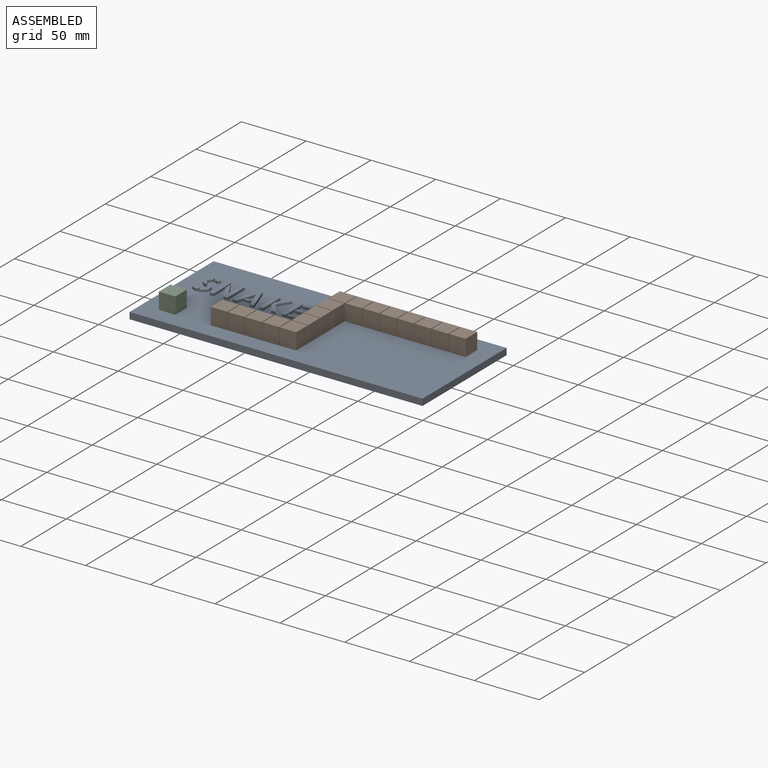
[diagram: assembled view]
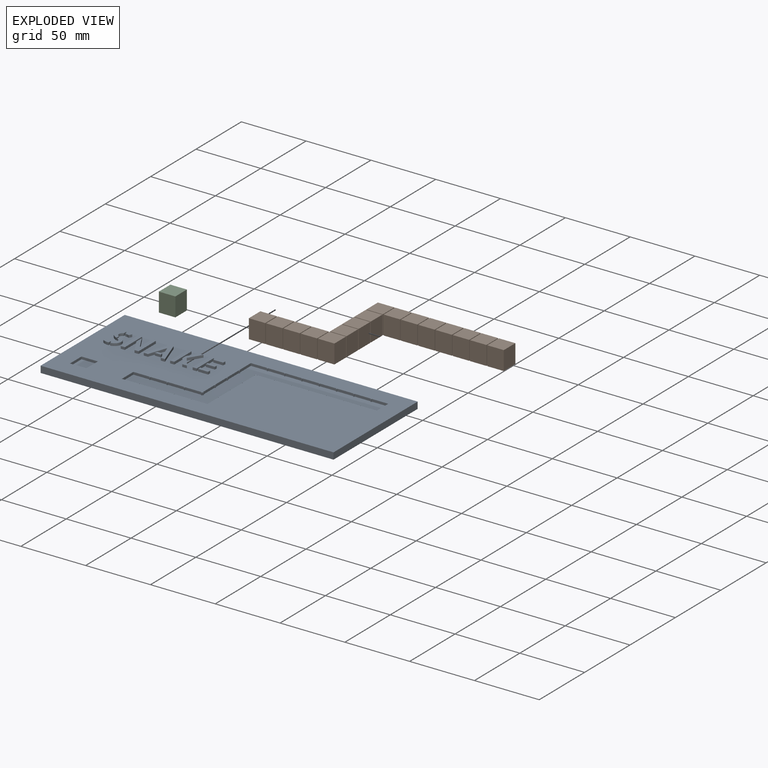
[diagram: exploded view]
GUIDED TOUR — MATED ASSEMBLY (Onshape document ac92a7174c1726aa687a01b5, AutoMate assembly ac92a7174c1726aa687a01b5_b56b34cfcfe60563ade4f9a3_d70a2706cb3209986a456c3b_default)

This assembly has 3 components, labeled P0..P2 below (a component is one placed occurrence of a part; the same part can appear more than once), held together by 7 mates. A mate is a constraint between two components; its type names the relative motion it leaves free:
  PLANAR — leaves sliding in the plane through the listed point (normal = the listed direction) and rotation about that normal free.
Axis/direction vectors are unit vectors and 'through' points are millimeter coordinates, both in the assembly's world frame.

MATES
  1. PLANAR "Planar 5": P2 <-> P0, direction (0.000, -1.000, 0.000) through (-214.28, 74.39, 108.52) mm
  2. PLANAR "Planar 6": P2 <-> P0, direction (0.000, 1.000, 0.000) through (-214.28, 87.09, 108.52) mm
  3. PLANAR "Planar 7": P2 <-> P0, direction (-1.000, 0.000, 0.000) through (-220.63, 80.74, 108.52) mm
  4. PLANAR "Planar 2": P0 <-> P1, direction (-1.000, 0.000, 0.000) through (-114.58, 80.74, 102.17) mm
  5. PLANAR "Planar 4": P2 <-> P0, direction (0.000, 0.000, -1.000) through (-214.28, 80.74, 101.21) mm
  6. PLANAR "Planar 3": P1 <-> P0, direction (0.000, -1.000, 0.000) through (-174.27, 74.39, 108.52) mm
  7. PLANAR "Planar 1": P0 <-> P1, direction (0.000, 0.000, 1.000) through (-115.22, 114.40, 101.21) mm

ASSEMBLY ORDER
  1. P2 — the base component [order verified]
  2. P0 [order verified]
  3. P1 [order verified]
Order-tag legend:
  [order verified] — this step's position reverses a verified removal order: the component was checked to insert without passing through the ones already placed.

Of the 3 components, 2 carry the full construction recipe — the FeatureScript program that regenerates the part's solid from scratch; the rest are supplied as boundary geometry only.
Each toured component is shown spotlighted twice — in the assembled view, then in the exploded view, where a leader line traces a displaced component back to its assembled socket (saturated green if recipe-attached, orange if geometry-only; every other component desaturated gray) — followed by its recipe or geometry summary and the mates that hold it.
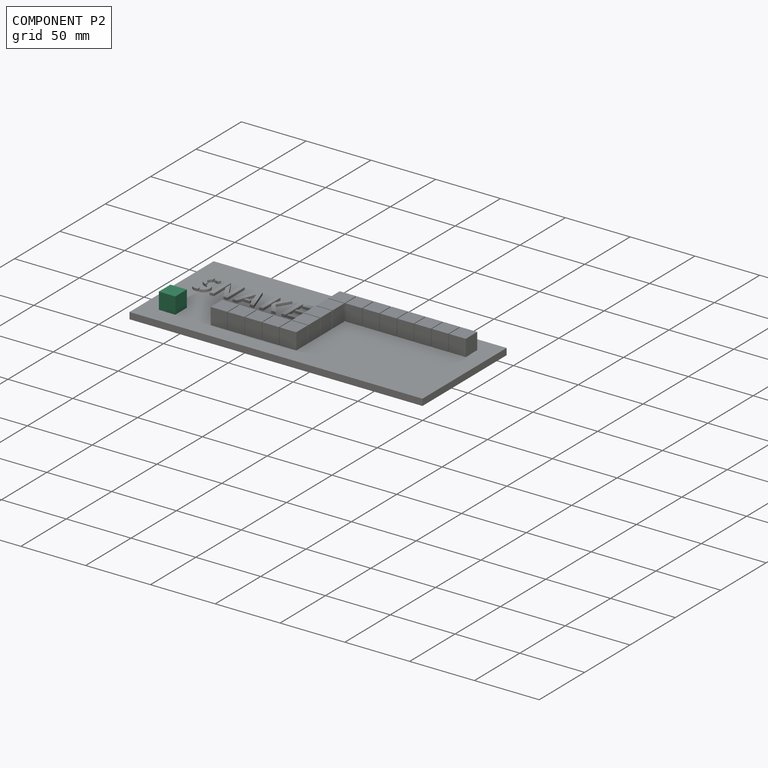
[diagram: component P2 — assembled]
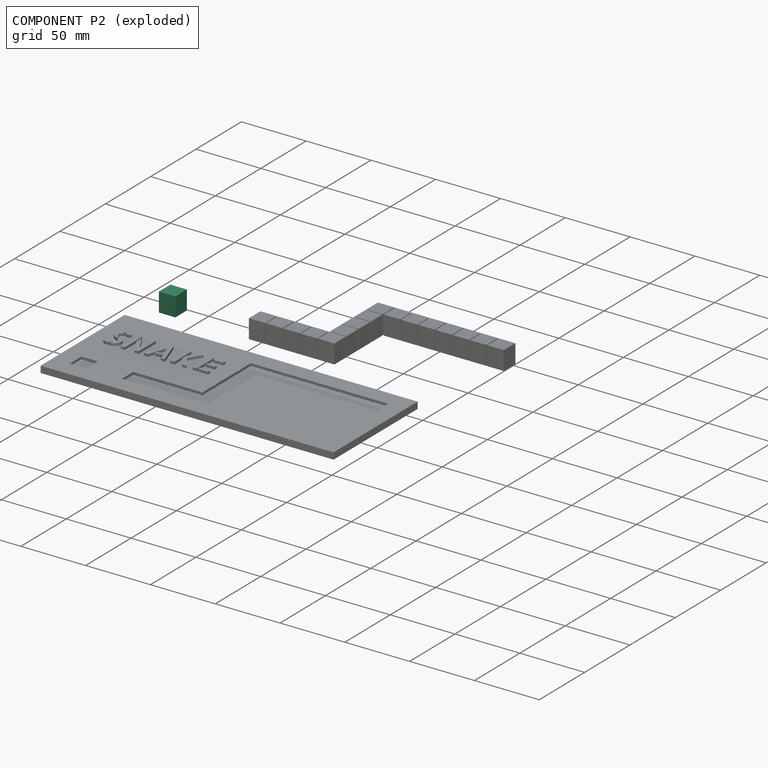
[diagram: component P2 — exploded]
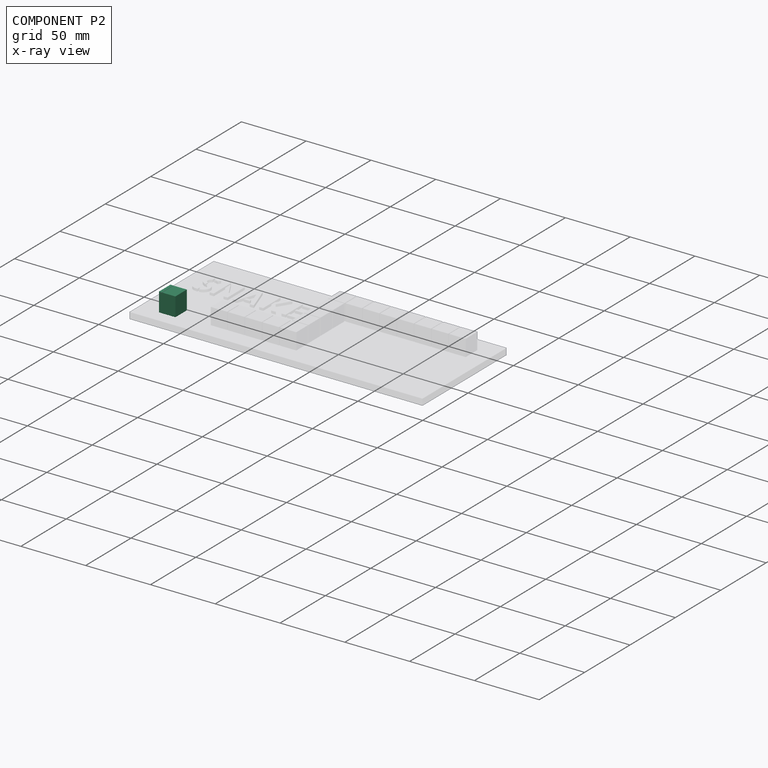
[diagram: component P2 — x-ray view]
COMPONENT P2 — recipe-attached (CADFS 00808057, mesh-verified: the recipe's output STEP matches this component's geometry to below the mesh-comparison resolution (tessellation chordal tolerance ~0.0347 mm)).
Held by: PLANAR mate "Planar 5" to P0; PLANAR mate "Planar 6" to P0; PLANAR mate "Planar 7" to P0; PLANAR mate "Planar 4" to P0.
Construction recipe (FeatureScript — the CAD program that rebuilds this solid; sketch coordinates are in the units given by the * unit suffixes, e.g. mm):

FeatureScript 1511;
import(path : "onshape/std/geometry.fs", version : "1511.0");
import(path : "onshape/std/common.fs", version : "1511.0");
const mm = millimeter;
const VERTEX = EntityType.VERTEX;
const EDGE = EntityType.EDGE;
const FACE = EntityType.FACE;
const BODY = EntityType.BODY;
function v(x, y){return vector(x, y);}
function OD(order){return orderDisambiguation(order);}
function OSD(set){return originalSetDisambiguation(set);}
function TD(topology){return topologyDisambiguation(topology);}
function TDD(query){return trueDependencyDisambiguation(query);}
function sQuery(a, b, c) {return sketchEntityQuery(a, b, c);}

annotation { "Feature Type Name" : "Feature", "Feature Type Description" : "" }
export const myFeature = defineFeature(function(context is Context, id is Id, definition is map)
    precondition{}
    {
        {
            var Q0;
            Q0=qCreatedBy(makeId("Top.planeOp"),FACE);
            var sketch = newSketch(context, id + "F0", { "sketchPlane" : qUnion([Q0])});
            skLineSegment(sketch, "E0.bottom", {"start": v(0, 0) * mm, "end": v(25.4, 0) * mm});
            skLineSegment(sketch, "E0.top", {"start": v(0, 25.4) * mm, "end": v(25.4, 25.4) * mm});
            skLineSegment(sketch, "E0.left", {"start": v(0, 0) * mm, "end": v(0, 25.4) * mm});
            skLineSegment(sketch, "E0.right", {"start": v(25.4, 0) * mm, "end": v(25.4, 25.4) * mm});
            skSolve(sketch);
        }
        {
            var Q0;
            Q0=makeQuery(id+"F0.imprint","IMPRINT",FACE,{"disambiguationData":[TD([[makeQuery(id+"F0.imprint","IMPRINT",EDGE,{"derivedFrom":sQuery(id+"F0.wireOp",EDGE,"E0.bottom")}),1.0]])]});
            extrude(context, id + "F1", {"entities" : qUnion([Q0]), "depth" : 29.2 * mm, "offsetDistance" : 25.4 * mm});
        }
        {
            var Q0;
            Q0=makeQuery(id+"F1.opExtrude","SWEPT_BODY",BODY,{"disambiguationData":[OSD([sQuery(id+"F0.wireOp",EDGE,"E0.bottom"),sQuery(id+"F0.wireOp",EDGE,"E0.top"),sQuery(id+"F0.wireOp",EDGE,"E0.left"),sQuery(id+"F0.wireOp",EDGE,"E0.right")])]});
            var Q1;
            Q1=qCreatedBy(makeId("Origin.pointOp"),VERTEX);
            transform(context, id + "F2", {"entities" : qUnion([Q0]), "transformType" : TransformType.SCALE_UNIFORMLY, "scale" : .5, "scalePoint" : qUnion([Q1]), "makeCopy" : false});
        }
    });
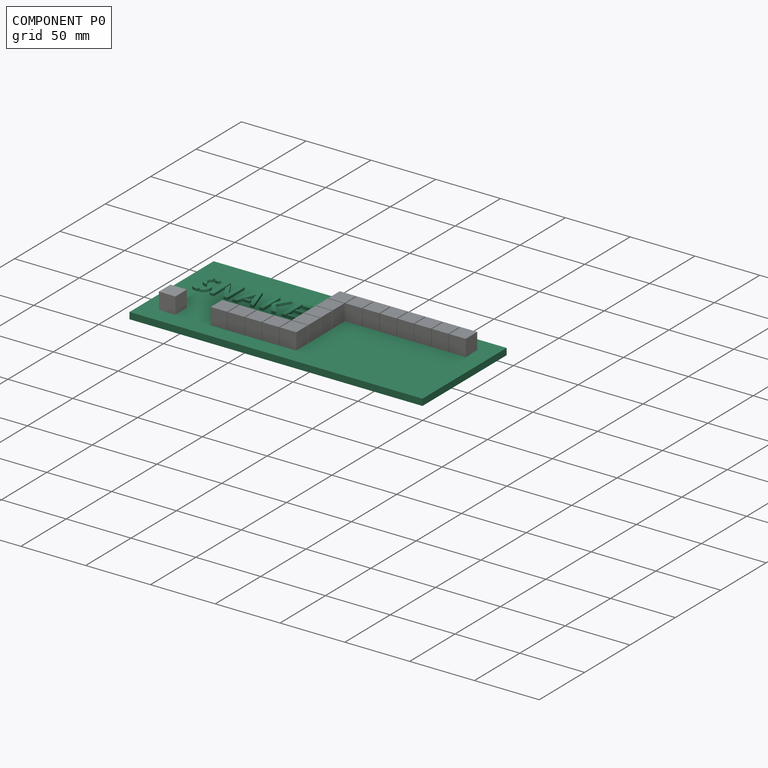
[diagram: component P0 — assembled]
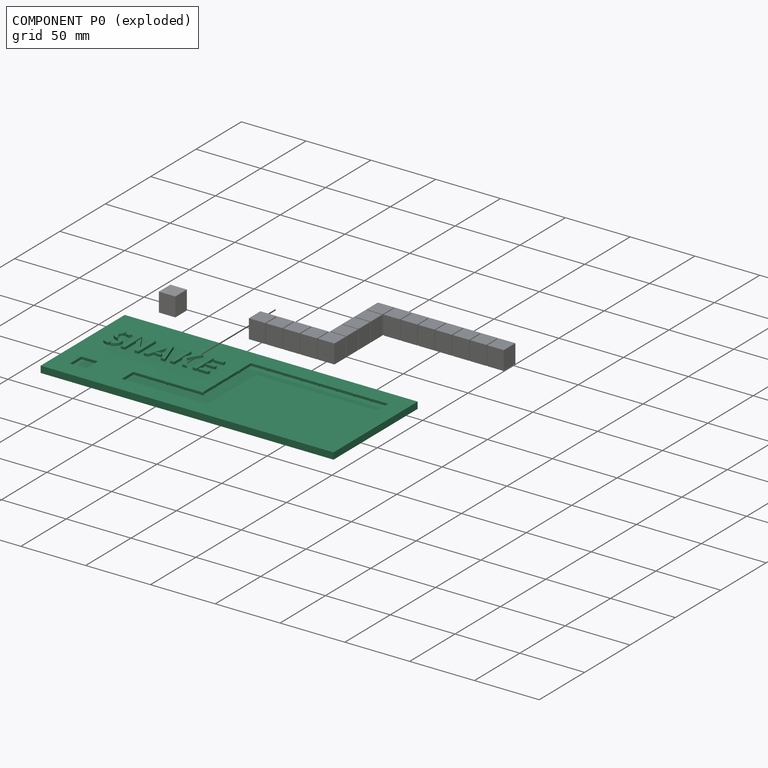
[diagram: component P0 — exploded]
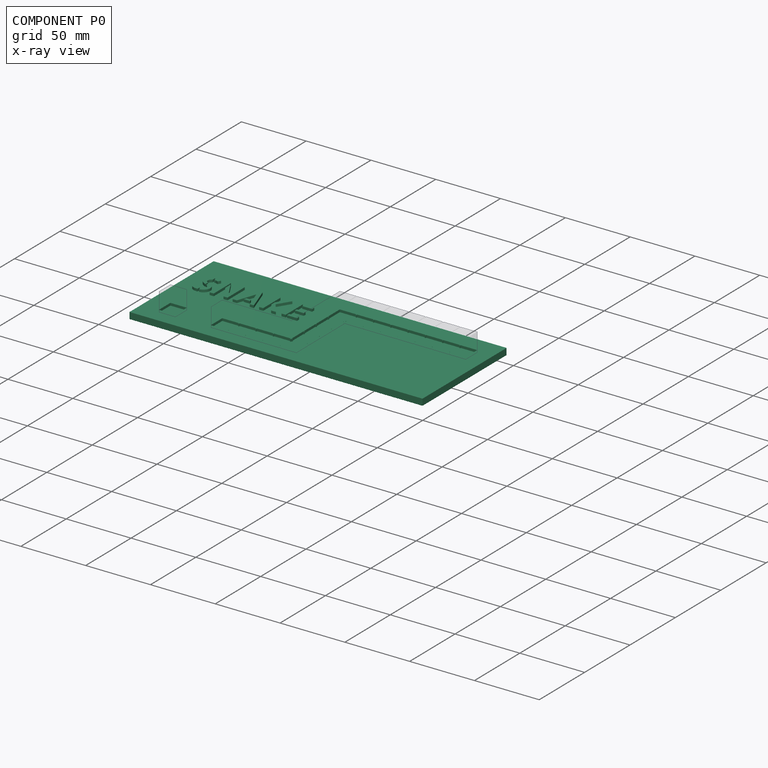
[diagram: component P0 — x-ray view]
COMPONENT P0 — recipe-attached (CADFS 00808056, mesh-verified: the recipe's output STEP matches this component's geometry to below the mesh-comparison resolution (tessellation chordal tolerance ~0.367 mm)).
Held by: PLANAR mate "Planar 5" to P2; PLANAR mate "Planar 6" to P2; PLANAR mate "Planar 7" to P2; PLANAR mate "Planar 2" to P1; PLANAR mate "Planar 4" to P2; PLANAR mate "Planar 3" to P1; PLANAR mate "Planar 1" to P1.
Construction recipe (FeatureScript — the CAD program that rebuilds this solid; sketch coordinates are in the units given by the * unit suffixes, e.g. mm):

FeatureScript 1511;
import(path : "onshape/std/geometry.fs", version : "1511.0");
import(path : "onshape/std/common.fs", version : "1511.0");
const mm = millimeter;
const VERTEX = EntityType.VERTEX;
const EDGE = EntityType.EDGE;
const FACE = EntityType.FACE;
const BODY = EntityType.BODY;
function v(x, y){return vector(x, y);}
function OD(order){return orderDisambiguation(order);}
function OSD(set){return originalSetDisambiguation(set);}
function TD(topology){return topologyDisambiguation(topology);}
function TDD(query){return trueDependencyDisambiguation(query);}
function sQuery(a, b, c) {return sketchEntityQuery(a, b, c);}

annotation { "Feature Type Name" : "Feature", "Feature Type Description" : "" }
export const myFeature = defineFeature(function(context is Context, id is Id, definition is map)
    precondition{}
    {
        {
            var Q0;
            Q0=qCreatedBy(makeId("Top.planeOp"),FACE);
            var sketch = newSketch(context, id + "F0", { "sketchPlane" : qUnion([Q0])});
            skLineSegment(sketch, "E0.bottom", {"start": v(-132.08, 0) * mm, "end": v(-106.68, 0) * mm});
            skLineSegment(sketch, "E0.top", {"start": v(-132.08, 25.4) * mm, "end": v(-106.68, 25.4) * mm});
            skLineSegment(sketch, "E0.left", {"start": v(-132.08, 0) * mm, "end": v(-132.08, 25.4) * mm});
            skLineSegment(sketch, "E0.right", {"start": v(-106.68, 0) * mm, "end": v(-106.68, 25.4) * mm});
            skLineSegment(sketch, "E1.bottom", {"start": v(-106.68, 24.13) * mm, "end": v(-105.41, 24.13) * mm});
            skLineSegment(sketch, "E1.top", {"start": v(-106.68, 1.27) * mm, "end": v(-105.41, 1.27) * mm});
            skLineSegment(sketch, "E1.left", {"start": v(-106.68, 24.13) * mm, "end": v(-106.68, 1.27) * mm});
            skLineSegment(sketch, "E1.right", {"start": v(-105.41, 24.13) * mm, "end": v(-105.41, 1.27) * mm});
            skLineSegment(sketch, "E2", {"start": v(-106.68, 25.4) * mm, "end": v(-106.68, 24.13) * mm});
            skLineSegment(sketch, "E3", {"start": v(-106.68, 0) * mm, "end": v(-106.68, 1.27) * mm});
            skLineSegment(sketch, "E4.bottom", {"start": v(-105.41, 0) * mm, "end": v(-80.01, 0) * mm});
            skLineSegment(sketch, "E4.top", {"start": v(-105.41, 25.4) * mm, "end": v(-80.01, 25.4) * mm});
            skLineSegment(sketch, "E4.left", {"start": v(-105.41, 0) * mm, "end": v(-105.41, 25.4) * mm});
            skLineSegment(sketch, "E4.right", {"start": v(-80.01, 0) * mm, "end": v(-80.01, 25.4) * mm});
            skLineSegment(sketch, "E5.bottom", {"start": v(-80.01, 24.13) * mm, "end": v(-78.74, 24.13) * mm});
            skLineSegment(sketch, "E5.top", {"start": v(-80.01, 1.27) * mm, "end": v(-78.74, 1.27) * mm});
            skLineSegment(sketch, "E5.left", {"start": v(-80.01, 24.13) * mm, "end": v(-80.01, 1.27) * mm});
            skLineSegment(sketch, "E5.right", {"start": v(-78.74, 24.13) * mm, "end": v(-78.74, 1.27) * mm});
            skLineSegment(sketch, "E6", {"start": v(-80.01, 25.4) * mm, "end": v(-80.01, 24.13) * mm});
            skLineSegment(sketch, "E7", {"start": v(-80.01, 0) * mm, "end": v(-80.01, 1.27) * mm});
            skLineSegment(sketch, "E8.bottom", {"start": v(-78.74, 0) * mm, "end": v(-53.34, 0) * mm});
            skLineSegment(sketch, "E8.top", {"start": v(-78.74, 25.4) * mm, "end": v(-53.34, 25.4) * mm});
            skLineSegment(sketch, "E8.left", {"start": v(-78.74, 0) * mm, "end": v(-78.74, 25.4) * mm});
            skLineSegment(sketch, "E8.right", {"start": v(-53.34, 0) * mm, "end": v(-53.34, 25.4) * mm});
            skLineSegment(sketch, "E9.bottom", {"start": v(-53.34, 24.13) * mm, "end": v(-52.07, 24.13) * mm});
            skLineSegment(sketch, "E9.top", {"start": v(-53.34, 1.27) * mm, "end": v(-52.07, 1.27) * mm});
            skLineSegment(sketch, "E9.left", {"start": v(-53.34, 24.13) * mm, "end": v(-53.34, 1.27) * mm});
            skLineSegment(sketch, "E9.right", {"start": v(-52.07, 24.13) * mm, "end": v(-52.07, 1.27) * mm});
            skLineSegment(sketch, "E10", {"start": v(-53.34, 25.4) * mm, "end": v(-53.34, 24.13) * mm});
            skLineSegment(sketch, "E11", {"start": v(-53.34, 0) * mm, "end": v(-53.34, 1.27) * mm});
            skLineSegment(sketch, "E12.bottom", {"start": v(-52.07, 0) * mm, "end": v(-26.67, 0) * mm});
            skLineSegment(sketch, "E12.top", {"start": v(-52.07, 25.4) * mm, "end": v(-26.67, 25.4) * mm});
            skLineSegment(sketch, "E12.left", {"start": v(-52.07, 0) * mm, "end": v(-52.07, 25.4) * mm});
            skLineSegment(sketch, "E12.right", {"start": v(-26.67, 0) * mm, "end": v(-26.67, 25.4) * mm});
            skLineSegment(sketch, "E13.bottom", {"start": v(-26.67, 24.13) * mm, "end": v(-25.4, 24.13) * mm});
            skLineSegment(sketch, "E13.top", {"start": v(-26.67, 1.27) * mm, "end": v(-25.4, 1.27) * mm});
            skLineSegment(sketch, "E13.left", {"start": v(-26.67, 24.13) * mm, "end": v(-26.67, 1.27) * mm});
            skLineSegment(sketch, "E13.right", {"start": v(-25.4, 24.13) * mm, "end": v(-25.4, 1.27) * mm});
            skLineSegment(sketch, "E14", {"start": v(-26.67, 25.4) * mm, "end": v(-26.67, 24.13) * mm});
            skLineSegment(sketch, "E15", {"start": v(-26.67, 0) * mm, "end": v(-26.67, 1.27) * mm});
            skLineSegment(sketch, "E16.bottom", {"start": v(0, 0) * mm, "end": v(0, 25.4) * mm});
            skLineSegment(sketch, "E16.top", {"start": v(-25.4, 0) * mm, "end": v(-25.4, 25.4) * mm});
            skLineSegment(sketch, "E16.left", {"start": v(0, 0) * mm, "end": v(-25.4, 0) * mm});
            skLineSegment(sketch, "E16.right", {"start": v(0, 25.4) * mm, "end": v(-25.4, 25.4) * mm});
            skLineSegment(sketch, "E17.bottom", {"start": v(-24.13, 25.4) * mm, "end": v(-24.13, 26.67) * mm});
            skLineSegment(sketch, "E17.top", {"start": v(-1.27, 25.4) * mm, "end": v(-1.27, 26.67) * mm});
            skLineSegment(sketch, "E17.left", {"start": v(-24.13, 25.4) * mm, "end": v(-1.27, 25.4) * mm});
            skLineSegment(sketch, "E17.right", {"start": v(-24.13, 26.67) * mm, "end": v(-1.27, 26.67) * mm});
            skLineSegment(sketch, "E18", {"start": v(-25.4, 25.4) * mm, "end": v(-24.13, 25.4) * mm});
            skLineSegment(sketch, "E19", {"start": v(0, 25.4) * mm, "end": v(-1.27, 25.4) * mm});
            skLineSegment(sketch, "E20.bottom", {"start": v(0, 26.67) * mm, "end": v(0, 52.07) * mm});
            skLineSegment(sketch, "E20.top", {"start": v(-25.4, 26.67) * mm, "end": v(-25.4, 52.07) * mm});
            skLineSegment(sketch, "E20.left", {"start": v(0, 26.67) * mm, "end": v(-25.4, 26.67) * mm});
            skLineSegment(sketch, "E20.right", {"start": v(0, 52.07) * mm, "end": v(-25.4, 52.07) * mm});
            skLineSegment(sketch, "E21.bottom", {"start": v(-24.13, 52.07) * mm, "end": v(-24.13, 53.34) * mm});
            skLineSegment(sketch, "E21.top", {"start": v(-1.27, 52.07) * mm, "end": v(-1.27, 53.34) * mm});
            skLineSegment(sketch, "E21.left", {"start": v(-24.13, 52.07) * mm, "end": v(-1.27, 52.07) * mm});
            skLineSegment(sketch, "E21.right", {"start": v(-24.13, 53.34) * mm, "end": v(-1.27, 53.34) * mm});
            skLineSegment(sketch, "E22", {"start": v(-25.4, 52.07) * mm, "end": v(-24.13, 52.07) * mm});
            skLineSegment(sketch, "E23", {"start": v(0, 52.07) * mm, "end": v(-1.27, 52.07) * mm});
            skLineSegment(sketch, "E24.bottom", {"start": v(0, 53.34) * mm, "end": v(0, 78.74) * mm});
            skLineSegment(sketch, "E24.top", {"start": v(-25.4, 53.34) * mm, "end": v(-25.4, 78.74) * mm});
            skLineSegment(sketch, "E24.left", {"start": v(0, 53.34) * mm, "end": v(-25.4, 53.34) * mm});
            skLineSegment(sketch, "E24.right", {"start": v(0, 78.74) * mm, "end": v(-25.4, 78.74) * mm});
            skLineSegment(sketch, "E25.bottom", {"start": v(-24.13, 78.74) * mm, "end": v(-24.13, 80) * mm});
            skLineSegment(sketch, "E25.top", {"start": v(-1.27, 78.74) * mm, "end": v(-1.27, 80) * mm});
            skLineSegment(sketch, "E25.left", {"start": v(-24.13, 78.74) * mm, "end": v(-1.27, 78.74) * mm});
            skLineSegment(sketch, "E25.right", {"start": v(-24.13, 80) * mm, "end": v(-1.27, 80) * mm});
            skLineSegment(sketch, "E26", {"start": v(-25.4, 78.74) * mm, "end": v(-24.13, 78.74) * mm});
            skLineSegment(sketch, "E27", {"start": v(0, 78.74) * mm, "end": v(-1.27, 78.74) * mm});
            skLineSegment(sketch, "E28.bottom", {"start": v(0, 80) * mm, "end": v(0, 105.4) * mm});
            skLineSegment(sketch, "E28.top", {"start": v(-25.4, 80) * mm, "end": v(-25.4, 105.4) * mm});
            skLineSegment(sketch, "E28.left", {"start": v(0, 80) * mm, "end": v(-25.4, 80) * mm});
            skLineSegment(sketch, "E28.right", {"start": v(0, 105.4) * mm, "end": v(-25.4, 105.4) * mm});
            skLineSegment(sketch, "E29.bottom", {"start": v(-24.13, 105.4) * mm, "end": v(-24.13, 106.68) * mm});
            skLineSegment(sketch, "E29.top", {"start": v(-1.27, 105.4) * mm, "end": v(-1.27, 106.68) * mm});
            skLineSegment(sketch, "E29.left", {"start": v(-24.13, 105.4) * mm, "end": v(-1.27, 105.4) * mm});
            skLineSegment(sketch, "E29.right", {"start": v(-24.13, 106.68) * mm, "end": v(-1.27, 106.68) * mm});
            skLineSegment(sketch, "E30", {"start": v(-25.4, 105.4) * mm, "end": v(-24.13, 105.4) * mm});
            skLineSegment(sketch, "E31", {"start": v(0, 105.4) * mm, "end": v(-1.27, 105.4) * mm});
            skLineSegment(sketch, "E32", {"start": v(-25.4, 1.27) * mm, "end": v(-25.4, 12.7) * mm});
            skLineSegment(sketch, "E33", {"start": v(-25.4, 12.7) * mm, "end": v(-26.67, 12.7) * mm});
            skLineSegment(sketch, "E34.bottom", {"start": v(-25.4, 106.68) * mm, "end": v(0, 106.68) * mm});
            skLineSegment(sketch, "E34.top", {"start": v(-25.4, 132.08) * mm, "end": v(0, 132.08) * mm});
            skLineSegment(sketch, "E34.left", {"start": v(-25.4, 106.68) * mm, "end": v(-25.4, 132.08) * mm});
            skLineSegment(sketch, "E34.right", {"start": v(0, 106.68) * mm, "end": v(0, 132.08) * mm});
            skLineSegment(sketch, "E35.bottom", {"start": v(0, 130.8) * mm, "end": v(1.27, 130.8) * mm});
            skLineSegment(sketch, "E35.top", {"start": v(0, 107.95) * mm, "end": v(1.27, 107.95) * mm});
            skLineSegment(sketch, "E35.left", {"start": v(0, 130.8) * mm, "end": v(0, 107.95) * mm});
            skLineSegment(sketch, "E35.right", {"start": v(1.27, 130.8) * mm, "end": v(1.27, 107.95) * mm});
            skLineSegment(sketch, "E36", {"start": v(0, 132.08) * mm, "end": v(0, 130.8) * mm});
            skLineSegment(sketch, "E37", {"start": v(0, 106.68) * mm, "end": v(0, 107.95) * mm});
            skLineSegment(sketch, "E38.bottom", {"start": v(1.27, 106.68) * mm, "end": v(26.67, 106.68) * mm});
            skLineSegment(sketch, "E38.top", {"start": v(1.27, 132.08) * mm, "end": v(26.67, 132.08) * mm});
            skLineSegment(sketch, "E38.left", {"start": v(1.27, 106.68) * mm, "end": v(1.27, 132.08) * mm});
            skLineSegment(sketch, "E38.right", {"start": v(26.67, 106.68) * mm, "end": v(26.67, 132.08) * mm});
            skLineSegment(sketch, "E39.bottom", {"start": v(26.67, 130.8) * mm, "end": v(27.94, 130.8) * mm});
            skLineSegment(sketch, "E39.top", {"start": v(26.67, 107.95) * mm, "end": v(27.94, 107.95) * mm});
            skLineSegment(sketch, "E39.left", {"start": v(26.67, 130.8) * mm, "end": v(26.67, 107.95) * mm});
            skLineSegment(sketch, "E39.right", {"start": v(27.94, 130.8) * mm, "end": v(27.94, 107.95) * mm});
            skLineSegment(sketch, "E40", {"start": v(26.67, 132.08) * mm, "end": v(26.67, 130.8) * mm});
            skLineSegment(sketch, "E41", {"start": v(26.67, 106.68) * mm, "end": v(26.67, 107.95) * mm});
            skLineSegment(sketch, "E42.bottom", {"start": v(27.94, 106.68) * mm, "end": v(53.34, 106.68) * mm});
            skLineSegment(sketch, "E42.top", {"start": v(27.94, 132.08) * mm, "end": v(53.34, 132.08) * mm});
            skLineSegment(sketch, "E42.left", {"start": v(27.94, 106.68) * mm, "end": v(27.94, 132.08) * mm});
            skLineSegment(sketch, "E42.right", {"start": v(53.34, 106.68) * mm, "end": v(53.34, 132.08) * mm});
            skLineSegment(sketch, "E43.bottom", {"start": v(53.34, 130.8) * mm, "end": v(54.6, 130.8) * mm});
            skLineSegment(sketch, "E43.top", {"start": v(53.34, 107.95) * mm, "end": v(54.6, 107.95) * mm});
            skLineSegment(sketch, "E43.left", {"start": v(53.34, 130.8) * mm, "end": v(53.34, 107.95) * mm});
            skLineSegment(sketch, "E43.right", {"start": v(54.6, 130.8) * mm, "end": v(54.6, 107.95) * mm});
            skLineSegment(sketch, "E44", {"start": v(53.34, 132.08) * mm, "end": v(53.34, 130.8) * mm});
            skLineSegment(sketch, "E45", {"start": v(53.34, 106.68) * mm, "end": v(53.34, 107.95) * mm});
            skLineSegment(sketch, "E46.bottom", {"start": v(54.6, 106.68) * mm, "end": v(80, 106.68) * mm});
            skLineSegment(sketch, "E46.top", {"start": v(54.6, 132.08) * mm, "end": v(80, 132.08) * mm});
            skLineSegment(sketch, "E46.left", {"start": v(54.6, 106.68) * mm, "end": v(54.6, 132.08) * mm});
            skLineSegment(sketch, "E46.right", {"start": v(80, 106.68) * mm, "end": v(80, 132.08) * mm});
            skLineSegment(sketch, "E47.bottom", {"start": v(80, 130.8) * mm, "end": v(81.28, 130.8) * mm});
            skLineSegment(sketch, "E47.top", {"start": v(80, 107.95) * mm, "end": v(81.28, 107.95) * mm});
            skLineSegment(sketch, "E47.left", {"start": v(80, 130.8) * mm, "end": v(80, 107.95) * mm});
            skLineSegment(sketch, "E47.right", {"start": v(81.28, 130.8) * mm, "end": v(81.28, 107.95) * mm});
            skLineSegment(sketch, "E48", {"start": v(80, 132.08) * mm, "end": v(80, 130.8) * mm});
            skLineSegment(sketch, "E49", {"start": v(80, 106.68) * mm, "end": v(80, 107.95) * mm});
            skLineSegment(sketch, "E50.bottom", {"start": v(81.28, 106.68) * mm, "end": v(106.68, 106.68) * mm});
            skLineSegment(sketch, "E50.top", {"start": v(81.28, 132.08) * mm, "end": v(106.68, 132.08) * mm});
            skLineSegment(sketch, "E50.left", {"start": v(81.28, 106.68) * mm, "end": v(81.28, 132.08) * mm});
            skLineSegment(sketch, "E50.right", {"start": v(106.68, 106.68) * mm, "end": v(106.68, 132.08) * mm});
            skLineSegment(sketch, "E51.bottom", {"start": v(106.68, 130.8) * mm, "end": v(107.95, 130.8) * mm});
            skLineSegment(sketch, "E51.top", {"start": v(106.68, 107.95) * mm, "end": v(107.95, 107.95) * mm});
            skLineSegment(sketch, "E51.left", {"start": v(106.68, 130.8) * mm, "end": v(106.68, 107.95) * mm});
            skLineSegment(sketch, "E51.right", {"start": v(107.95, 130.8) * mm, "end": v(107.95, 107.95) * mm});
            skLineSegment(sketch, "E52", {"start": v(106.68, 132.08) * mm, "end": v(106.68, 130.8) * mm});
            skLineSegment(sketch, "E53", {"start": v(106.68, 106.68) * mm, "end": v(106.68, 107.95) * mm});
            skLineSegment(sketch, "E54.bottom", {"start": v(107.95, 106.68) * mm, "end": v(133.35, 106.68) * mm});
            skLineSegment(sketch, "E54.top", {"start": v(107.95, 132.08) * mm, "end": v(133.35, 132.08) * mm});
            skLineSegment(sketch, "E54.left", {"start": v(107.95, 106.68) * mm, "end": v(107.95, 132.08) * mm});
            skLineSegment(sketch, "E54.right", {"start": v(133.35, 106.68) * mm, "end": v(133.35, 132.08) * mm});
            skLineSegment(sketch, "E55.bottom", {"start": v(133.35, 130.8) * mm, "end": v(134.62, 130.8) * mm});
            skLineSegment(sketch, "E55.top", {"start": v(133.35, 107.95) * mm, "end": v(134.62, 107.95) * mm});
            skLineSegment(sketch, "E55.left", {"start": v(133.35, 130.8) * mm, "end": v(133.35, 107.95) * mm});
            skLineSegment(sketch, "E55.right", {"start": v(134.62, 130.8) * mm, "end": v(134.62, 107.95) * mm});
            skLineSegment(sketch, "E56", {"start": v(133.35, 132.08) * mm, "end": v(133.35, 130.8) * mm});
            skLineSegment(sketch, "E57", {"start": v(133.35, 106.68) * mm, "end": v(133.35, 107.95) * mm});
            skLineSegment(sketch, "E58.bottom", {"start": v(134.62, 106.68) * mm, "end": v(160.02, 106.68) * mm});
            skLineSegment(sketch, "E58.top", {"start": v(134.62, 132.08) * mm, "end": v(160.02, 132.08) * mm});
            skLineSegment(sketch, "E58.left", {"start": v(134.62, 106.68) * mm, "end": v(134.62, 132.08) * mm});
            skLineSegment(sketch, "E58.right", {"start": v(160.02, 106.68) * mm, "end": v(160.02, 132.08) * mm});
            skLineSegment(sketch, "E59.bottom", {"start": v(160.02, 130.8) * mm, "end": v(161.29, 130.8) * mm});
            skLineSegment(sketch, "E59.top", {"start": v(160.02, 107.95) * mm, "end": v(161.29, 107.95) * mm});
            skLineSegment(sketch, "E59.left", {"start": v(160.02, 130.8) * mm, "end": v(160.02, 107.95) * mm});
            skLineSegment(sketch, "E59.right", {"start": v(161.29, 130.8) * mm, "end": v(161.29, 107.95) * mm});
            skLineSegment(sketch, "E60", {"start": v(160.02, 132.08) * mm, "end": v(160.02, 130.8) * mm});
            skLineSegment(sketch, "E61", {"start": v(160.02, 106.68) * mm, "end": v(160.02, 107.95) * mm});
            skLineSegment(sketch, "E62.bottom", {"start": v(161.29, 106.68) * mm, "end": v(186.69, 106.68) * mm});
            skLineSegment(sketch, "E62.top", {"start": v(161.29, 132.08) * mm, "end": v(186.7, 132.08) * mm});
            skLineSegment(sketch, "E62.left", {"start": v(161.29, 106.68) * mm, "end": v(161.29, 132.08) * mm});
            skLineSegment(sketch, "E62.right", {"start": v(186.7, 106.68) * mm, "end": v(186.7, 132.08) * mm});
            skLineSegment(sketch, "E63.left", {"start": v(186.7, 130.8) * mm, "end": v(186.7, 42.8) * mm});
            skLineSegment(sketch, "E64", {"start": v(186.7, 132.08) * mm, "end": v(186.7, 130.8) * mm});
            skLineSegment(sketch, "E65", {"start": v(186.7, 42.8) * mm, "end": v(186.7, 106.68) * mm});
            skLineSegment(sketch, "E66.bottom", {"start": v(213.36, -26.67) * mm, "end": v(-238.76, -26.67) * mm});
            skLineSegment(sketch, "E66.top", {"start": v(213.36, 158.75) * mm, "end": v(-238.76, 158.75) * mm});
            skLineSegment(sketch, "E66.left", {"start": v(213.36, -26.67) * mm, "end": v(213.36, 158.75) * mm});
            skLineSegment(sketch, "E66.right", {"start": v(-238.76, -26.67) * mm, "end": v(-238.76, 158.75) * mm});
            skLineSegment(sketch, "E67.bottom", {"start": v(-186.7, 25.4) * mm, "end": v(-212.1, 25.4) * mm});
            skLineSegment(sketch, "E67.top", {"start": v(-186.7, 0) * mm, "end": v(-212.1, 0) * mm});
            skLineSegment(sketch, "E67.left", {"start": v(-186.7, 25.4) * mm, "end": v(-186.7, 0) * mm});
            skLineSegment(sketch, "E67.right", {"start": v(-212.1, 25.4) * mm, "end": v(-212.1, 0) * mm});
            skText(sketch, "E68", { "text": "SNAKE", "fontName": "AllertaStencil-Regular.ttf"});
            skLineSegment(sketch, "E69", {"start": v(-217.6, 73.02) * mm, "end": v(-238.76, 73.02) * mm});
            skLineSegment(sketch, "E70", {"start": v(-46.57, 111.12) * mm, "end": v(-25.4, 111.12) * mm});
            skLineSegment(sketch, "E71", {"start": v(-132.08, 111.12) * mm, "end": v(-132.08, 158.75) * mm});
            skLineSegment(sketch, "E72", {"start": v(-132.08, 25.4) * mm, "end": v(-132.08, 73.02) * mm});
            const initialGuessF0  = {"E68": [-0.2176, 0.07302, 1, 0, 0.0381]};
            skSetInitialGuess(sketch, initialGuessF0);
            skSolve(sketch);
        }
        {
            var Q0;
            {var subQ3=sQuery(id+"F0.wireOp",EDGE,"E28.bottom");Q0=makeQuery(id+"F0.imprint","IMPRINT",FACE,{"disambiguationData":[TD([[makeQuery(id+"F0.imprint","IMPRINT",EDGE,{"derivedFrom":subQ3}),1.0]])]});}
            var Q1;
            Q1=makeQuery(id+"F0.imprint","IMPRINT",FACE,{"disambiguationData":[TD([[makeQuery(id+"F0.imprint","IMPRINT",EDGE,{"derivedFrom":sQuery(id+"F0.wireOp",EDGE,"E68.sketch_text.stroke-72")}),-1.0]])]});
            var Q2;
            Q2=makeQuery(id+"F0.imprint","IMPRINT",FACE,{"disambiguationData":[TD([[makeQuery(id+"F0.imprint","IMPRINT",EDGE,{"derivedFrom":sQuery(id+"F0.wireOp",EDGE,"E68.sketch_text.stroke-76")}),-1.0]])]});
            var Q3;
            {var subQ3=sQuery(id+"F0.wireOp",EDGE,"E24.bottom");Q3=makeQuery(id+"F0.imprint","IMPRINT",FACE,{"disambiguationData":[TD([[makeQuery(id+"F0.imprint","IMPRINT",EDGE,{"derivedFrom":subQ3}),1.0]])]});}
            var Q4;
            {var subQ3=sQuery(id+"F0.wireOp",EDGE,"E58.bottom");Q4=makeQuery(id+"F0.imprint","IMPRINT",FACE,{"disambiguationData":[TD([[makeQuery(id+"F0.imprint","IMPRINT",EDGE,{"derivedFrom":subQ3}),1.0]])]});}
            var Q5;
            {var subQ3=sQuery(id+"F0.wireOp",EDGE,"E62.bottom");Q5=makeQuery(id+"F0.imprint","IMPRINT",FACE,{"disambiguationData":[TD([[makeQuery(id+"F0.imprint","IMPRINT",EDGE,{"derivedFrom":subQ3}),1.0]])]});}
            var Q6;
            {var subQ3=sQuery(id+"F0.wireOp",EDGE,"E38.bottom");Q6=makeQuery(id+"F0.imprint","IMPRINT",FACE,{"disambiguationData":[TD([[makeQuery(id+"F0.imprint","IMPRINT",EDGE,{"derivedFrom":subQ3}),1.0]])]});}
            var Q7;
            Q7=makeQuery(id+"F0.imprint","IMPRINT",FACE,{"disambiguationData":[TD([[makeQuery(id+"F0.imprint","IMPRINT",EDGE,{"derivedFrom":sQuery(id+"F0.wireOp",EDGE,"E0.bottom")}),-1.0]])]});
            var Q8;
            {var subQ0=sQuery(id+"F0.wireOp",EDGE,"E34.top");Q8=makeQuery(id+"F0.imprint","IMPRINT",FACE,{"disambiguationData":[TD([[makeQuery(id+"F0.imprint","IMPRINT",EDGE,{"derivedFrom":subQ0}),-1.0]])]});}
            var Q9;
            {var subQ3=sQuery(id+"F0.wireOp",EDGE,"E42.bottom");Q9=makeQuery(id+"F0.imprint","IMPRINT",FACE,{"disambiguationData":[TD([[makeQuery(id+"F0.imprint","IMPRINT",EDGE,{"derivedFrom":subQ3}),1.0]])]});}
            var Q10;
            Q10=makeQuery(id+"F0.imprint","IMPRINT",FACE,{"disambiguationData":[TD([[makeQuery(id+"F0.imprint","IMPRINT",EDGE,{"derivedFrom":sQuery(id+"F0.wireOp",EDGE,"E68.sketch_text.stroke-83")}),-1.0]])]});
            var Q11;
            {var subQ3=sQuery(id+"F0.wireOp",EDGE,"E4.bottom");Q11=makeQuery(id+"F0.imprint","IMPRINT",FACE,{"disambiguationData":[TD([[makeQuery(id+"F0.imprint","IMPRINT",EDGE,{"derivedFrom":subQ3}),1.0]])]});}
            var Q12;
            {var subQ3=sQuery(id+"F0.wireOp",EDGE,"E46.bottom");Q12=makeQuery(id+"F0.imprint","IMPRINT",FACE,{"disambiguationData":[TD([[makeQuery(id+"F0.imprint","IMPRINT",EDGE,{"derivedFrom":subQ3}),1.0]])]});}
            var Q13;
            {var subQ3=sQuery(id+"F0.wireOp",EDGE,"E54.bottom");Q13=makeQuery(id+"F0.imprint","IMPRINT",FACE,{"disambiguationData":[TD([[makeQuery(id+"F0.imprint","IMPRINT",EDGE,{"derivedFrom":subQ3}),1.0]])]});}
            var Q14;
            {var subQ3=sQuery(id+"F0.wireOp",EDGE,"E8.bottom");Q14=makeQuery(id+"F0.imprint","IMPRINT",FACE,{"disambiguationData":[TD([[makeQuery(id+"F0.imprint","IMPRINT",EDGE,{"derivedFrom":subQ3}),1.0]])]});}
            var Q15;
            {var subQ3=sQuery(id+"F0.wireOp",EDGE,"E20.bottom");Q15=makeQuery(id+"F0.imprint","IMPRINT",FACE,{"disambiguationData":[TD([[makeQuery(id+"F0.imprint","IMPRINT",EDGE,{"derivedFrom":subQ3}),1.0]])]});}
            var Q16;
            Q16=makeQuery(id+"F0.imprint","IMPRINT",FACE,{"disambiguationData":[TD([[makeQuery(id+"F0.imprint","IMPRINT",EDGE,{"derivedFrom":sQuery(id+"F0.wireOp",EDGE,"E0.bottom")}),1.0]])]});
            var Q17;
            Q17=makeQuery(id+"F0.imprint","IMPRINT",FACE,{"disambiguationData":[TD([[makeQuery(id+"F0.imprint","IMPRINT",EDGE,{"derivedFrom":sQuery(id+"F0.wireOp",EDGE,"E68.sketch_text.stroke-95")}),-1.0]])]});
            var Q18;
            Q18=makeQuery(id+"F0.imprint","IMPRINT",FACE,{"disambiguationData":[TD([[makeQuery(id+"F0.imprint","IMPRINT",EDGE,{"derivedFrom":sQuery(id+"F0.wireOp",EDGE,"E67.bottom")}),1.0]])]});
            var Q19;
            Q19=makeQuery(id+"F0.imprint","IMPRINT",FACE,{"disambiguationData":[TD([[makeQuery(id+"F0.imprint","IMPRINT",EDGE,{"derivedFrom":sQuery(id+"F0.wireOp",EDGE,"E68.sketch_text.stroke-50")}),-1.0]])]});
            var Q20;
            Q20=makeQuery(id+"F0.imprint","IMPRINT",FACE,{"disambiguationData":[TD([[makeQuery(id+"F0.imprint","IMPRINT",EDGE,{"derivedFrom":sQuery(id+"F0.wireOp",EDGE,"E68.sketch_text.stroke-57")}),-1.0]])]});
            var Q21;
            Q21=makeQuery(id+"F0.imprint","IMPRINT",FACE,{"disambiguationData":[TD([[makeQuery(id+"F0.imprint","IMPRINT",EDGE,{"derivedFrom":sQuery(id+"F0.wireOp",EDGE,"E68.sketch_text.stroke-61")}),-1.0]])]});
            var Q22;
            Q22=makeQuery(id+"F0.imprint","IMPRINT",FACE,{"disambiguationData":[TD([[makeQuery(id+"F0.imprint","IMPRINT",EDGE,{"derivedFrom":sQuery(id+"F0.wireOp",EDGE,"E16.bottom")}),1.0]])]});
            var Q23;
            Q23=makeQuery(id+"F0.imprint","IMPRINT",FACE,{"disambiguationData":[TD([[makeQuery(id+"F0.imprint","IMPRINT",EDGE,{"derivedFrom":sQuery(id+"F0.wireOp",EDGE,"E68.sketch_text.stroke-68")}),-1.0]])]});
            var Q24;
            Q24=makeQuery(id+"F0.imprint","IMPRINT",FACE,{"disambiguationData":[TD([[makeQuery(id+"F0.imprint","IMPRINT",EDGE,{"derivedFrom":sQuery(id+"F0.wireOp",EDGE,"E68.sketch_text.stroke-87")}),-1.0]])]});
            var Q25;
            {var subQ3=sQuery(id+"F0.wireOp",EDGE,"E50.bottom");Q25=makeQuery(id+"F0.imprint","IMPRINT",FACE,{"disambiguationData":[TD([[makeQuery(id+"F0.imprint","IMPRINT",EDGE,{"derivedFrom":subQ3}),1.0]])]});}
            var Q26;
            Q26=makeQuery(id+"F0.imprint","IMPRINT",FACE,{"disambiguationData":[TD([[makeQuery(id+"F0.imprint","IMPRINT",EDGE,{"derivedFrom":sQuery(id+"F0.wireOp",EDGE,"E68.sketch_text.stroke-91")}),-1.0]])]});
            var Q27;
            Q27=makeQuery(id+"F0.imprint","IMPRINT",FACE,{"disambiguationData":[TD([[makeQuery(id+"F0.imprint","IMPRINT",EDGE,{"derivedFrom":sQuery(id+"F0.wireOp",EDGE,"E68.sketch_text.stroke-0")}),-1.0]])]});
            var Q28;
            Q28=makeQuery(id+"F0.imprint","IMPRINT",FACE,{"disambiguationData":[TD([[makeQuery(id+"F0.imprint","IMPRINT",EDGE,{"derivedFrom":sQuery(id+"F0.wireOp",EDGE,"E68.sketch_text.stroke-11")}),-1.0]])]});
            var Q29;
            Q29=makeQuery(id+"F0.imprint","IMPRINT",FACE,{"disambiguationData":[TD([[makeQuery(id+"F0.imprint","IMPRINT",EDGE,{"derivedFrom":sQuery(id+"F0.wireOp",EDGE,"E68.sketch_text.stroke-25")}),-1.0]])]});
            var Q30;
            Q30=makeQuery(id+"F0.imprint","IMPRINT",FACE,{"disambiguationData":[TD([[makeQuery(id+"F0.imprint","IMPRINT",EDGE,{"derivedFrom":sQuery(id+"F0.wireOp",EDGE,"E68.sketch_text.stroke-37")}),-1.0]])]});
            var Q31;
            {var subQ3=sQuery(id+"F0.wireOp",EDGE,"E12.bottom");Q31=makeQuery(id+"F0.imprint","IMPRINT",FACE,{"disambiguationData":[TD([[makeQuery(id+"F0.imprint","IMPRINT",EDGE,{"derivedFrom":subQ3}),1.0]])]});}
            var Q32;
            {var subQ0=sQuery(id+"F0.wireOp",EDGE,"E35.bottom");Q32=makeQuery(id+"F0.imprint","IMPRINT",FACE,{"disambiguationData":[TD([[makeQuery(id+"F0.imprint","IMPRINT",EDGE,{"derivedFrom":subQ0}),-1.0]])]});}
            var Q33;
            {var subQ0=sQuery(id+"F0.wireOp",EDGE,"E39.bottom");Q33=makeQuery(id+"F0.imprint","IMPRINT",FACE,{"disambiguationData":[TD([[makeQuery(id+"F0.imprint","IMPRINT",EDGE,{"derivedFrom":subQ0}),-1.0]])]});}
            var Q34;
            {var subQ0=sQuery(id+"F0.wireOp",EDGE,"E59.bottom");Q34=makeQuery(id+"F0.imprint","IMPRINT",FACE,{"disambiguationData":[TD([[makeQuery(id+"F0.imprint","IMPRINT",EDGE,{"derivedFrom":subQ0}),-1.0]])]});}
            var Q35;
            {var subQ0=sQuery(id+"F0.wireOp",EDGE,"E1.bottom");Q35=makeQuery(id+"F0.imprint","IMPRINT",FACE,{"disambiguationData":[TD([[makeQuery(id+"F0.imprint","IMPRINT",EDGE,{"derivedFrom":subQ0}),-1.0]])]});}
            var Q36;
            {var subQ0=sQuery(id+"F0.wireOp",EDGE,"E43.bottom");Q36=makeQuery(id+"F0.imprint","IMPRINT",FACE,{"disambiguationData":[TD([[makeQuery(id+"F0.imprint","IMPRINT",EDGE,{"derivedFrom":subQ0}),-1.0]])]});}
            var Q37;
            {var subQ0=sQuery(id+"F0.wireOp",EDGE,"E5.bottom");Q37=makeQuery(id+"F0.imprint","IMPRINT",FACE,{"disambiguationData":[TD([[makeQuery(id+"F0.imprint","IMPRINT",EDGE,{"derivedFrom":subQ0}),-1.0]])]});}
            var Q38;
            {var subQ0=sQuery(id+"F0.wireOp",EDGE,"E47.bottom");Q38=makeQuery(id+"F0.imprint","IMPRINT",FACE,{"disambiguationData":[TD([[makeQuery(id+"F0.imprint","IMPRINT",EDGE,{"derivedFrom":subQ0}),-1.0]])]});}
            var Q39;
            {var subQ0=sQuery(id+"F0.wireOp",EDGE,"E9.bottom");Q39=makeQuery(id+"F0.imprint","IMPRINT",FACE,{"disambiguationData":[TD([[makeQuery(id+"F0.imprint","IMPRINT",EDGE,{"derivedFrom":subQ0}),-1.0]])]});}
            var Q40;
            {var subQ0=sQuery(id+"F0.wireOp",EDGE,"E55.bottom");Q40=makeQuery(id+"F0.imprint","IMPRINT",FACE,{"disambiguationData":[TD([[makeQuery(id+"F0.imprint","IMPRINT",EDGE,{"derivedFrom":subQ0}),-1.0]])]});}
            var Q41;
            {var subQ0=sQuery(id+"F0.wireOp",EDGE,"E21.bottom");Q41=makeQuery(id+"F0.imprint","IMPRINT",FACE,{"disambiguationData":[TD([[makeQuery(id+"F0.imprint","IMPRINT",EDGE,{"derivedFrom":subQ0}),-1.0]])]});}
            var Q42;
            {var subQ0=sQuery(id+"F0.wireOp",EDGE,"E51.bottom");Q42=makeQuery(id+"F0.imprint","IMPRINT",FACE,{"disambiguationData":[TD([[makeQuery(id+"F0.imprint","IMPRINT",EDGE,{"derivedFrom":subQ0}),-1.0]])]});}
            var Q43;
            {var subQ0=sQuery(id+"F0.wireOp",EDGE,"E13.bottom");Q43=makeQuery(id+"F0.imprint","IMPRINT",FACE,{"disambiguationData":[TD([[makeQuery(id+"F0.imprint","IMPRINT",EDGE,{"derivedFrom":subQ0}),-1.0]])]});}
            var Q44;
            {var subQ0=sQuery(id+"F0.wireOp",EDGE,"E13.top");Q44=makeQuery(id+"F0.imprint","IMPRINT",FACE,{"disambiguationData":[TD([[makeQuery(id+"F0.imprint","IMPRINT",EDGE,{"derivedFrom":subQ0}),1.0]])]});}
            var Q45;
            {var subQ0=sQuery(id+"F0.wireOp",EDGE,"E17.bottom");Q45=makeQuery(id+"F0.imprint","IMPRINT",FACE,{"disambiguationData":[TD([[makeQuery(id+"F0.imprint","IMPRINT",EDGE,{"derivedFrom":subQ0}),-1.0]])]});}
            var Q46;
            {var subQ0=sQuery(id+"F0.wireOp",EDGE,"E25.bottom");Q46=makeQuery(id+"F0.imprint","IMPRINT",FACE,{"disambiguationData":[TD([[makeQuery(id+"F0.imprint","IMPRINT",EDGE,{"derivedFrom":subQ0}),-1.0]])]});}
            var Q47;
            {var subQ0=sQuery(id+"F0.wireOp",EDGE,"E29.bottom");Q47=makeQuery(id+"F0.imprint","IMPRINT",FACE,{"disambiguationData":[TD([[makeQuery(id+"F0.imprint","IMPRINT",EDGE,{"derivedFrom":subQ0}),-1.0]])]});}
            extrude(context, id + "F1", {"entities" : qUnion([Q0, Q1, Q2, Q3, Q4, Q5, Q6, Q7, Q8, Q9, Q10, Q11, Q12, Q13, Q14, Q15, Q16, Q17, Q18, Q19, Q20, Q21, Q22, Q23, Q24, Q25, Q26, Q27, Q28, Q29, Q30, Q31, Q32, Q33, Q34, Q35, Q36, Q37, Q38, Q39, Q40, Q41, Q42, Q43, Q44, Q45, Q46, Q47]), "oppositeDirection" : true, "depth" : 10.16 * mm, "offsetDistance" : 25.4 * mm});
        }
        {
            var Q0;
            {var subQ3=sQuery(id+"F0.wireOp",EDGE,"E28.bottom");Q0=makeQuery(id+"F0.imprint","IMPRINT",FACE,{"disambiguationData":[TD([[makeQuery(id+"F0.imprint","IMPRINT",EDGE,{"derivedFrom":subQ3}),1.0]])]});}
            var Q1;
            Q1=makeQuery(id+"F0.imprint","IMPRINT",FACE,{"disambiguationData":[TD([[makeQuery(id+"F0.imprint","IMPRINT",EDGE,{"derivedFrom":sQuery(id+"F0.wireOp",EDGE,"E16.bottom")}),1.0]])]});
            var Q2;
            Q2=makeQuery(id+"F0.imprint","IMPRINT",FACE,{"disambiguationData":[TD([[makeQuery(id+"F0.imprint","IMPRINT",EDGE,{"derivedFrom":sQuery(id+"F0.wireOp",EDGE,"E68.sketch_text.stroke-72")}),-1.0]])]});
            var Q3;
            Q3=makeQuery(id+"F0.imprint","IMPRINT",FACE,{"disambiguationData":[TD([[makeQuery(id+"F0.imprint","IMPRINT",EDGE,{"derivedFrom":sQuery(id+"F0.wireOp",EDGE,"E68.sketch_text.stroke-76")}),-1.0]])]});
            var Q4;
            {var subQ3=sQuery(id+"F0.wireOp",EDGE,"E24.bottom");Q4=makeQuery(id+"F0.imprint","IMPRINT",FACE,{"disambiguationData":[TD([[makeQuery(id+"F0.imprint","IMPRINT",EDGE,{"derivedFrom":subQ3}),1.0]])]});}
            var Q5;
            {var subQ3=sQuery(id+"F0.wireOp",EDGE,"E58.bottom");Q5=makeQuery(id+"F0.imprint","IMPRINT",FACE,{"disambiguationData":[TD([[makeQuery(id+"F0.imprint","IMPRINT",EDGE,{"derivedFrom":subQ3}),1.0]])]});}
            var Q6;
            {var subQ3=sQuery(id+"F0.wireOp",EDGE,"E62.bottom");Q6=makeQuery(id+"F0.imprint","IMPRINT",FACE,{"disambiguationData":[TD([[makeQuery(id+"F0.imprint","IMPRINT",EDGE,{"derivedFrom":subQ3}),1.0]])]});}
            var Q7;
            {var subQ3=sQuery(id+"F0.wireOp",EDGE,"E38.bottom");Q7=makeQuery(id+"F0.imprint","IMPRINT",FACE,{"disambiguationData":[TD([[makeQuery(id+"F0.imprint","IMPRINT",EDGE,{"derivedFrom":subQ3}),1.0]])]});}
            var Q8;
            Q8=makeQuery(id+"F0.imprint","IMPRINT",FACE,{"disambiguationData":[TD([[makeQuery(id+"F0.imprint","IMPRINT",EDGE,{"derivedFrom":sQuery(id+"F0.wireOp",EDGE,"E68.sketch_text.stroke-68")}),-1.0]])]});
            var Q9;
            {var subQ0=sQuery(id+"F0.wireOp",EDGE,"E34.top");Q9=makeQuery(id+"F0.imprint","IMPRINT",FACE,{"disambiguationData":[TD([[makeQuery(id+"F0.imprint","IMPRINT",EDGE,{"derivedFrom":subQ0}),-1.0]])]});}
            var Q10;
            {var subQ3=sQuery(id+"F0.wireOp",EDGE,"E42.bottom");Q10=makeQuery(id+"F0.imprint","IMPRINT",FACE,{"disambiguationData":[TD([[makeQuery(id+"F0.imprint","IMPRINT",EDGE,{"derivedFrom":subQ3}),1.0]])]});}
            var Q11;
            Q11=makeQuery(id+"F0.imprint","IMPRINT",FACE,{"disambiguationData":[TD([[makeQuery(id+"F0.imprint","IMPRINT",EDGE,{"derivedFrom":sQuery(id+"F0.wireOp",EDGE,"E68.sketch_text.stroke-83")}),-1.0]])]});
            var Q12;
            {var subQ3=sQuery(id+"F0.wireOp",EDGE,"E4.bottom");Q12=makeQuery(id+"F0.imprint","IMPRINT",FACE,{"disambiguationData":[TD([[makeQuery(id+"F0.imprint","IMPRINT",EDGE,{"derivedFrom":subQ3}),1.0]])]});}
            var Q13;
            Q13=makeQuery(id+"F0.imprint","IMPRINT",FACE,{"disambiguationData":[TD([[makeQuery(id+"F0.imprint","IMPRINT",EDGE,{"derivedFrom":sQuery(id+"F0.wireOp",EDGE,"E68.sketch_text.stroke-87")}),-1.0]])]});
            var Q14;
            {var subQ3=sQuery(id+"F0.wireOp",EDGE,"E46.bottom");Q14=makeQuery(id+"F0.imprint","IMPRINT",FACE,{"disambiguationData":[TD([[makeQuery(id+"F0.imprint","IMPRINT",EDGE,{"derivedFrom":subQ3}),1.0]])]});}
            var Q15;
            {var subQ3=sQuery(id+"F0.wireOp",EDGE,"E54.bottom");Q15=makeQuery(id+"F0.imprint","IMPRINT",FACE,{"disambiguationData":[TD([[makeQuery(id+"F0.imprint","IMPRINT",EDGE,{"derivedFrom":subQ3}),1.0]])]});}
            var Q16;
            {var subQ3=sQuery(id+"F0.wireOp",EDGE,"E8.bottom");Q16=makeQuery(id+"F0.imprint","IMPRINT",FACE,{"disambiguationData":[TD([[makeQuery(id+"F0.imprint","IMPRINT",EDGE,{"derivedFrom":subQ3}),1.0]])]});}
            var Q17;
            {var subQ3=sQuery(id+"F0.wireOp",EDGE,"E20.bottom");Q17=makeQuery(id+"F0.imprint","IMPRINT",FACE,{"disambiguationData":[TD([[makeQuery(id+"F0.imprint","IMPRINT",EDGE,{"derivedFrom":subQ3}),1.0]])]});}
            var Q18;
            {var subQ3=sQuery(id+"F0.wireOp",EDGE,"E50.bottom");Q18=makeQuery(id+"F0.imprint","IMPRINT",FACE,{"disambiguationData":[TD([[makeQuery(id+"F0.imprint","IMPRINT",EDGE,{"derivedFrom":subQ3}),1.0]])]});}
            var Q19;
            Q19=makeQuery(id+"F0.imprint","IMPRINT",FACE,{"disambiguationData":[TD([[makeQuery(id+"F0.imprint","IMPRINT",EDGE,{"derivedFrom":sQuery(id+"F0.wireOp",EDGE,"E0.bottom")}),1.0]])]});
            var Q20;
            Q20=makeQuery(id+"F0.imprint","IMPRINT",FACE,{"disambiguationData":[TD([[makeQuery(id+"F0.imprint","IMPRINT",EDGE,{"derivedFrom":sQuery(id+"F0.wireOp",EDGE,"E68.sketch_text.stroke-91")}),-1.0]])]});
            var Q21;
            Q21=makeQuery(id+"F0.imprint","IMPRINT",FACE,{"disambiguationData":[TD([[makeQuery(id+"F0.imprint","IMPRINT",EDGE,{"derivedFrom":sQuery(id+"F0.wireOp",EDGE,"E68.sketch_text.stroke-95")}),-1.0]])]});
            var Q22;
            Q22=makeQuery(id+"F0.imprint","IMPRINT",FACE,{"disambiguationData":[TD([[makeQuery(id+"F0.imprint","IMPRINT",EDGE,{"derivedFrom":sQuery(id+"F0.wireOp",EDGE,"E67.bottom")}),1.0]])]});
            var Q23;
            Q23=makeQuery(id+"F0.imprint","IMPRINT",FACE,{"disambiguationData":[TD([[makeQuery(id+"F0.imprint","IMPRINT",EDGE,{"derivedFrom":sQuery(id+"F0.wireOp",EDGE,"E68.sketch_text.stroke-0")}),-1.0]])]});
            var Q24;
            Q24=makeQuery(id+"F0.imprint","IMPRINT",FACE,{"disambiguationData":[TD([[makeQuery(id+"F0.imprint","IMPRINT",EDGE,{"derivedFrom":sQuery(id+"F0.wireOp",EDGE,"E68.sketch_text.stroke-11")}),-1.0]])]});
            var Q25;
            Q25=makeQuery(id+"F0.imprint","IMPRINT",FACE,{"disambiguationData":[TD([[makeQuery(id+"F0.imprint","IMPRINT",EDGE,{"derivedFrom":sQuery(id+"F0.wireOp",EDGE,"E68.sketch_text.stroke-25")}),-1.0]])]});
            var Q26;
            Q26=makeQuery(id+"F0.imprint","IMPRINT",FACE,{"disambiguationData":[TD([[makeQuery(id+"F0.imprint","IMPRINT",EDGE,{"derivedFrom":sQuery(id+"F0.wireOp",EDGE,"E68.sketch_text.stroke-37")}),-1.0]])]});
            var Q27;
            Q27=makeQuery(id+"F0.imprint","IMPRINT",FACE,{"disambiguationData":[TD([[makeQuery(id+"F0.imprint","IMPRINT",EDGE,{"derivedFrom":sQuery(id+"F0.wireOp",EDGE,"E68.sketch_text.stroke-50")}),-1.0]])]});
            var Q28;
            Q28=makeQuery(id+"F0.imprint","IMPRINT",FACE,{"disambiguationData":[TD([[makeQuery(id+"F0.imprint","IMPRINT",EDGE,{"derivedFrom":sQuery(id+"F0.wireOp",EDGE,"E68.sketch_text.stroke-57")}),-1.0]])]});
            var Q29;
            Q29=makeQuery(id+"F0.imprint","IMPRINT",FACE,{"disambiguationData":[TD([[makeQuery(id+"F0.imprint","IMPRINT",EDGE,{"derivedFrom":sQuery(id+"F0.wireOp",EDGE,"E68.sketch_text.stroke-61")}),-1.0]])]});
            var Q30;
            {var subQ3=sQuery(id+"F0.wireOp",EDGE,"E12.bottom");Q30=makeQuery(id+"F0.imprint","IMPRINT",FACE,{"disambiguationData":[TD([[makeQuery(id+"F0.imprint","IMPRINT",EDGE,{"derivedFrom":subQ3}),1.0]])]});}
            var Q31;
            {var subQ0=sQuery(id+"F0.wireOp",EDGE,"E29.bottom");Q31=makeQuery(id+"F0.imprint","IMPRINT",FACE,{"disambiguationData":[TD([[makeQuery(id+"F0.imprint","IMPRINT",EDGE,{"derivedFrom":subQ0}),-1.0]])]});}
            var Q32;
            {var subQ0=sQuery(id+"F0.wireOp",EDGE,"E21.bottom");Q32=makeQuery(id+"F0.imprint","IMPRINT",FACE,{"disambiguationData":[TD([[makeQuery(id+"F0.imprint","IMPRINT",EDGE,{"derivedFrom":subQ0}),-1.0]])]});}
            var Q33;
            {var subQ0=sQuery(id+"F0.wireOp",EDGE,"E39.bottom");Q33=makeQuery(id+"F0.imprint","IMPRINT",FACE,{"disambiguationData":[TD([[makeQuery(id+"F0.imprint","IMPRINT",EDGE,{"derivedFrom":subQ0}),-1.0]])]});}
            var Q34;
            {var subQ0=sQuery(id+"F0.wireOp",EDGE,"E59.bottom");Q34=makeQuery(id+"F0.imprint","IMPRINT",FACE,{"disambiguationData":[TD([[makeQuery(id+"F0.imprint","IMPRINT",EDGE,{"derivedFrom":subQ0}),-1.0]])]});}
            var Q35;
            {var subQ0=sQuery(id+"F0.wireOp",EDGE,"E1.bottom");Q35=makeQuery(id+"F0.imprint","IMPRINT",FACE,{"disambiguationData":[TD([[makeQuery(id+"F0.imprint","IMPRINT",EDGE,{"derivedFrom":subQ0}),-1.0]])]});}
            var Q36;
            {var subQ0=sQuery(id+"F0.wireOp",EDGE,"E43.bottom");Q36=makeQuery(id+"F0.imprint","IMPRINT",FACE,{"disambiguationData":[TD([[makeQuery(id+"F0.imprint","IMPRINT",EDGE,{"derivedFrom":subQ0}),-1.0]])]});}
            var Q37;
            {var subQ0=sQuery(id+"F0.wireOp",EDGE,"E5.bottom");Q37=makeQuery(id+"F0.imprint","IMPRINT",FACE,{"disambiguationData":[TD([[makeQuery(id+"F0.imprint","IMPRINT",EDGE,{"derivedFrom":subQ0}),-1.0]])]});}
            var Q38;
            {var subQ0=sQuery(id+"F0.wireOp",EDGE,"E47.bottom");Q38=makeQuery(id+"F0.imprint","IMPRINT",FACE,{"disambiguationData":[TD([[makeQuery(id+"F0.imprint","IMPRINT",EDGE,{"derivedFrom":subQ0}),-1.0]])]});}
            var Q39;
            {var subQ0=sQuery(id+"F0.wireOp",EDGE,"E9.bottom");Q39=makeQuery(id+"F0.imprint","IMPRINT",FACE,{"disambiguationData":[TD([[makeQuery(id+"F0.imprint","IMPRINT",EDGE,{"derivedFrom":subQ0}),-1.0]])]});}
            var Q40;
            {var subQ0=sQuery(id+"F0.wireOp",EDGE,"E17.bottom");Q40=makeQuery(id+"F0.imprint","IMPRINT",FACE,{"disambiguationData":[TD([[makeQuery(id+"F0.imprint","IMPRINT",EDGE,{"derivedFrom":subQ0}),-1.0]])]});}
            var Q41;
            {var subQ0=sQuery(id+"F0.wireOp",EDGE,"E35.bottom");Q41=makeQuery(id+"F0.imprint","IMPRINT",FACE,{"disambiguationData":[TD([[makeQuery(id+"F0.imprint","IMPRINT",EDGE,{"derivedFrom":subQ0}),-1.0]])]});}
            var Q42;
            {var subQ0=sQuery(id+"F0.wireOp",EDGE,"E13.bottom");Q42=makeQuery(id+"F0.imprint","IMPRINT",FACE,{"disambiguationData":[TD([[makeQuery(id+"F0.imprint","IMPRINT",EDGE,{"derivedFrom":subQ0}),-1.0]])]});}
            var Q43;
            {var subQ0=sQuery(id+"F0.wireOp",EDGE,"E25.bottom");Q43=makeQuery(id+"F0.imprint","IMPRINT",FACE,{"disambiguationData":[TD([[makeQuery(id+"F0.imprint","IMPRINT",EDGE,{"derivedFrom":subQ0}),-1.0]])]});}
            var Q44;
            {var subQ0=sQuery(id+"F0.wireOp",EDGE,"E13.top");Q44=makeQuery(id+"F0.imprint","IMPRINT",FACE,{"disambiguationData":[TD([[makeQuery(id+"F0.imprint","IMPRINT",EDGE,{"derivedFrom":subQ0}),1.0]])]});}
            var Q45;
            {var subQ0=sQuery(id+"F0.wireOp",EDGE,"E51.bottom");Q45=makeQuery(id+"F0.imprint","IMPRINT",FACE,{"disambiguationData":[TD([[makeQuery(id+"F0.imprint","IMPRINT",EDGE,{"derivedFrom":subQ0}),-1.0]])]});}
            var Q46;
            {var subQ0=sQuery(id+"F0.wireOp",EDGE,"E55.bottom");Q46=makeQuery(id+"F0.imprint","IMPRINT",FACE,{"disambiguationData":[TD([[makeQuery(id+"F0.imprint","IMPRINT",EDGE,{"derivedFrom":subQ0}),-1.0]])]});}
            extrude(context, id + "F2", {"entities" : qUnion([Q0, Q1, Q2, Q3, Q4, Q5, Q6, Q7, Q8, Q9, Q10, Q11, Q12, Q13, Q14, Q15, Q16, Q17, Q18, Q19, Q20, Q21, Q22, Q23, Q24, Q25, Q26, Q27, Q28, Q29, Q30, Q31, Q32, Q33, Q34, Q35, Q36, Q37, Q38, Q39, Q40, Q41, Q42, Q43, Q44, Q45, Q46]), "operationType" : NewBodyOperationType.REMOVE, "oppositeDirection" : true, "depth" : 3.8 * mm, "offsetDistance" : 25.4 * mm});
        }
        {
            var Q0;
            Q0=makeQuery(id+"F0.imprint","IMPRINT",FACE,{"disambiguationData":[TD([[makeQuery(id+"F0.imprint","IMPRINT",EDGE,{"derivedFrom":sQuery(id+"F0.wireOp",EDGE,"E68.sketch_text.stroke-11")}),-1.0]])]});
            var Q1;
            Q1=makeQuery(id+"F0.imprint","IMPRINT",FACE,{"disambiguationData":[TD([[makeQuery(id+"F0.imprint","IMPRINT",EDGE,{"derivedFrom":sQuery(id+"F0.wireOp",EDGE,"E68.sketch_text.stroke-25")}),-1.0]])]});
            var Q2;
            Q2=makeQuery(id+"F0.imprint","IMPRINT",FACE,{"disambiguationData":[TD([[makeQuery(id+"F0.imprint","IMPRINT",EDGE,{"derivedFrom":sQuery(id+"F0.wireOp",EDGE,"E68.sketch_text.stroke-37")}),-1.0]])]});
            var Q3;
            Q3=makeQuery(id+"F0.imprint","IMPRINT",FACE,{"disambiguationData":[TD([[makeQuery(id+"F0.imprint","IMPRINT",EDGE,{"derivedFrom":sQuery(id+"F0.wireOp",EDGE,"E68.sketch_text.stroke-0")}),-1.0]])]});
            var Q4;
            Q4=makeQuery(id+"F0.imprint","IMPRINT",FACE,{"disambiguationData":[TD([[makeQuery(id+"F0.imprint","IMPRINT",EDGE,{"derivedFrom":sQuery(id+"F0.wireOp",EDGE,"E68.sketch_text.stroke-57")}),-1.0]])]});
            var Q5;
            Q5=makeQuery(id+"F0.imprint","IMPRINT",FACE,{"disambiguationData":[TD([[makeQuery(id+"F0.imprint","IMPRINT",EDGE,{"derivedFrom":sQuery(id+"F0.wireOp",EDGE,"E68.sketch_text.stroke-50")}),-1.0]])]});
            var Q6;
            Q6=makeQuery(id+"F0.imprint","IMPRINT",FACE,{"disambiguationData":[TD([[makeQuery(id+"F0.imprint","IMPRINT",EDGE,{"derivedFrom":sQuery(id+"F0.wireOp",EDGE,"E68.sketch_text.stroke-61")}),-1.0]])]});
            var Q7;
            Q7=makeQuery(id+"F0.imprint","IMPRINT",FACE,{"disambiguationData":[TD([[makeQuery(id+"F0.imprint","IMPRINT",EDGE,{"derivedFrom":sQuery(id+"F0.wireOp",EDGE,"E68.sketch_text.stroke-68")}),-1.0]])]});
            var Q8;
            Q8=makeQuery(id+"F0.imprint","IMPRINT",FACE,{"disambiguationData":[TD([[makeQuery(id+"F0.imprint","IMPRINT",EDGE,{"derivedFrom":sQuery(id+"F0.wireOp",EDGE,"E68.sketch_text.stroke-72")}),-1.0]])]});
            var Q9;
            Q9=makeQuery(id+"F0.imprint","IMPRINT",FACE,{"disambiguationData":[TD([[makeQuery(id+"F0.imprint","IMPRINT",EDGE,{"derivedFrom":sQuery(id+"F0.wireOp",EDGE,"E68.sketch_text.stroke-76")}),-1.0]])]});
            var Q10;
            Q10=makeQuery(id+"F0.imprint","IMPRINT",FACE,{"disambiguationData":[TD([[makeQuery(id+"F0.imprint","IMPRINT",EDGE,{"derivedFrom":sQuery(id+"F0.wireOp",EDGE,"E68.sketch_text.stroke-83")}),-1.0]])]});
            var Q11;
            Q11=makeQuery(id+"F0.imprint","IMPRINT",FACE,{"disambiguationData":[TD([[makeQuery(id+"F0.imprint","IMPRINT",EDGE,{"derivedFrom":sQuery(id+"F0.wireOp",EDGE,"E68.sketch_text.stroke-87")}),-1.0]])]});
            var Q12;
            Q12=makeQuery(id+"F0.imprint","IMPRINT",FACE,{"disambiguationData":[TD([[makeQuery(id+"F0.imprint","IMPRINT",EDGE,{"derivedFrom":sQuery(id+"F0.wireOp",EDGE,"E68.sketch_text.stroke-91")}),-1.0]])]});
            var Q13;
            Q13=makeQuery(id+"F0.imprint","IMPRINT",FACE,{"disambiguationData":[TD([[makeQuery(id+"F0.imprint","IMPRINT",EDGE,{"derivedFrom":sQuery(id+"F0.wireOp",EDGE,"E68.sketch_text.stroke-95")}),-1.0]])]});
            extrude(context, id + "F3", {"entities" : qUnion([Q0, Q1, Q2, Q3, Q4, Q5, Q6, Q7, Q8, Q9, Q10, Q11, Q12, Q13]), "operationType" : NewBodyOperationType.ADD, "oppositeDirection" : true, "depth" : 5.08 * mm, "offsetDistance" : 25.4 * mm});
        }
        {
            var Q0;
            Q0=makeQuery(id+"F0.imprint","IMPRINT",FACE,{"disambiguationData":[TD([[makeQuery(id+"F0.imprint","IMPRINT",EDGE,{"derivedFrom":sQuery(id+"F0.wireOp",EDGE,"E68.sketch_text.stroke-11")}),-1.0]])]});
            var Q1;
            Q1=makeQuery(id+"F0.imprint","IMPRINT",FACE,{"disambiguationData":[TD([[makeQuery(id+"F0.imprint","IMPRINT",EDGE,{"derivedFrom":sQuery(id+"F0.wireOp",EDGE,"E68.sketch_text.stroke-0")}),-1.0]])]});
            var Q2;
            Q2=makeQuery(id+"F0.imprint","IMPRINT",FACE,{"disambiguationData":[TD([[makeQuery(id+"F0.imprint","IMPRINT",EDGE,{"derivedFrom":sQuery(id+"F0.wireOp",EDGE,"E68.sketch_text.stroke-37")}),-1.0]])]});
            var Q3;
            Q3=makeQuery(id+"F0.imprint","IMPRINT",FACE,{"disambiguationData":[TD([[makeQuery(id+"F0.imprint","IMPRINT",EDGE,{"derivedFrom":sQuery(id+"F0.wireOp",EDGE,"E68.sketch_text.stroke-25")}),-1.0]])]});
            var Q4;
            Q4=makeQuery(id+"F0.imprint","IMPRINT",FACE,{"disambiguationData":[TD([[makeQuery(id+"F0.imprint","IMPRINT",EDGE,{"derivedFrom":sQuery(id+"F0.wireOp",EDGE,"E68.sketch_text.stroke-57")}),-1.0]])]});
            var Q5;
            Q5=makeQuery(id+"F0.imprint","IMPRINT",FACE,{"disambiguationData":[TD([[makeQuery(id+"F0.imprint","IMPRINT",EDGE,{"derivedFrom":sQuery(id+"F0.wireOp",EDGE,"E68.sketch_text.stroke-50")}),-1.0]])]});
            var Q6;
            Q6=makeQuery(id+"F0.imprint","IMPRINT",FACE,{"disambiguationData":[TD([[makeQuery(id+"F0.imprint","IMPRINT",EDGE,{"derivedFrom":sQuery(id+"F0.wireOp",EDGE,"E68.sketch_text.stroke-61")}),-1.0]])]});
            var Q7;
            Q7=makeQuery(id+"F0.imprint","IMPRINT",FACE,{"disambiguationData":[TD([[makeQuery(id+"F0.imprint","IMPRINT",EDGE,{"derivedFrom":sQuery(id+"F0.wireOp",EDGE,"E68.sketch_text.stroke-68")}),-1.0]])]});
            var Q8;
            Q8=makeQuery(id+"F0.imprint","IMPRINT",FACE,{"disambiguationData":[TD([[makeQuery(id+"F0.imprint","IMPRINT",EDGE,{"derivedFrom":sQuery(id+"F0.wireOp",EDGE,"E68.sketch_text.stroke-72")}),-1.0]])]});
            var Q9;
            Q9=makeQuery(id+"F0.imprint","IMPRINT",FACE,{"disambiguationData":[TD([[makeQuery(id+"F0.imprint","IMPRINT",EDGE,{"derivedFrom":sQuery(id+"F0.wireOp",EDGE,"E68.sketch_text.stroke-76")}),-1.0]])]});
            var Q10;
            Q10=makeQuery(id+"F0.imprint","IMPRINT",FACE,{"disambiguationData":[TD([[makeQuery(id+"F0.imprint","IMPRINT",EDGE,{"derivedFrom":sQuery(id+"F0.wireOp",EDGE,"E68.sketch_text.stroke-83")}),-1.0]])]});
            var Q11;
            Q11=makeQuery(id+"F0.imprint","IMPRINT",FACE,{"disambiguationData":[TD([[makeQuery(id+"F0.imprint","IMPRINT",EDGE,{"derivedFrom":sQuery(id+"F0.wireOp",EDGE,"E68.sketch_text.stroke-95")}),-1.0]])]});
            var Q12;
            Q12=makeQuery(id+"F0.imprint","IMPRINT",FACE,{"disambiguationData":[TD([[makeQuery(id+"F0.imprint","IMPRINT",EDGE,{"derivedFrom":sQuery(id+"F0.wireOp",EDGE,"E68.sketch_text.stroke-87")}),-1.0]])]});
            var Q13;
            Q13=makeQuery(id+"F0.imprint","IMPRINT",FACE,{"disambiguationData":[TD([[makeQuery(id+"F0.imprint","IMPRINT",EDGE,{"derivedFrom":sQuery(id+"F0.wireOp",EDGE,"E68.sketch_text.stroke-91")}),-1.0]])]});
            extrude(context, id + "F4", {"entities" : qUnion([Q0, Q1, Q2, Q3, Q4, Q5, Q6, Q7, Q8, Q9, Q10, Q11, Q12, Q13]), "operationType" : NewBodyOperationType.ADD, "depth" : 3.8 * mm, "offsetDistance" : 25.4 * mm});
        }
        {
            var Q0;
            Q0=makeQuery(id+"F1.opExtrude","SWEPT_BODY",BODY,{"disambiguationData":[OSD([sQuery(id+"F0.wireOp",EDGE,"E66.bottom"),sQuery(id+"F0.wireOp",EDGE,"E66.top"),sQuery(id+"F0.wireOp",EDGE,"E66.left"),sQuery(id+"F0.wireOp",EDGE,"E66.right")])]});
            var Q1;
            Q1=makeQuery(id+"F1.opExtrude","CAP_VERTEX",VERTEX,{"disambiguationData":[OSD([sQuery(id+"F0.wireOp",EDGE,"E66.bottom"),sQuery(id+"F0.wireOp",EDGE,"E66.right")])],"isStart":false});
            transform(context, id + "F5", {"entities" : qUnion([Q0]), "transformType" : TransformType.SCALE_UNIFORMLY, "scale" : .5, "scalePoint" : qUnion([Q1]), "makeCopy" : false});
        }
    });
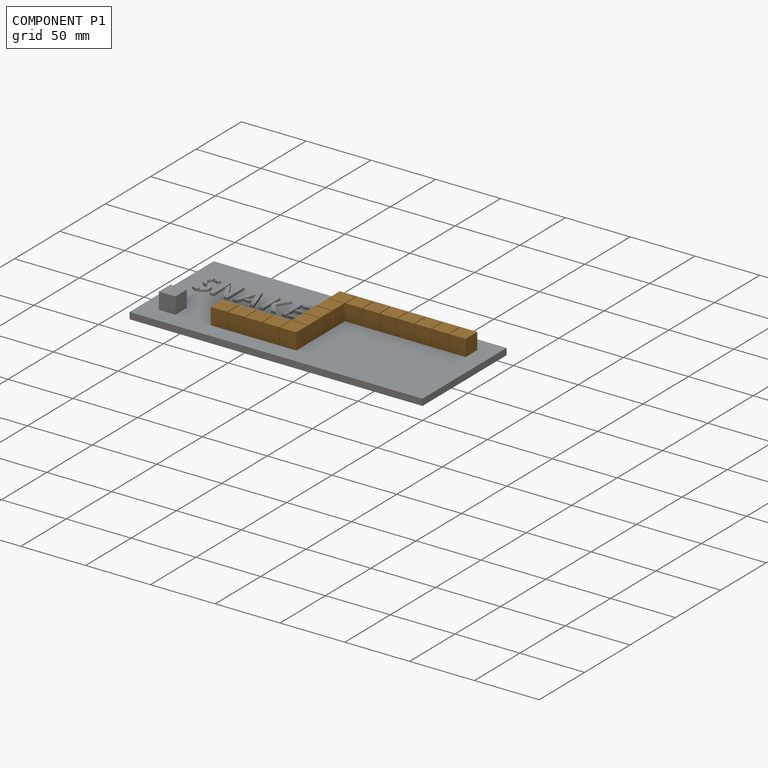
[diagram: component P1 — assembled]
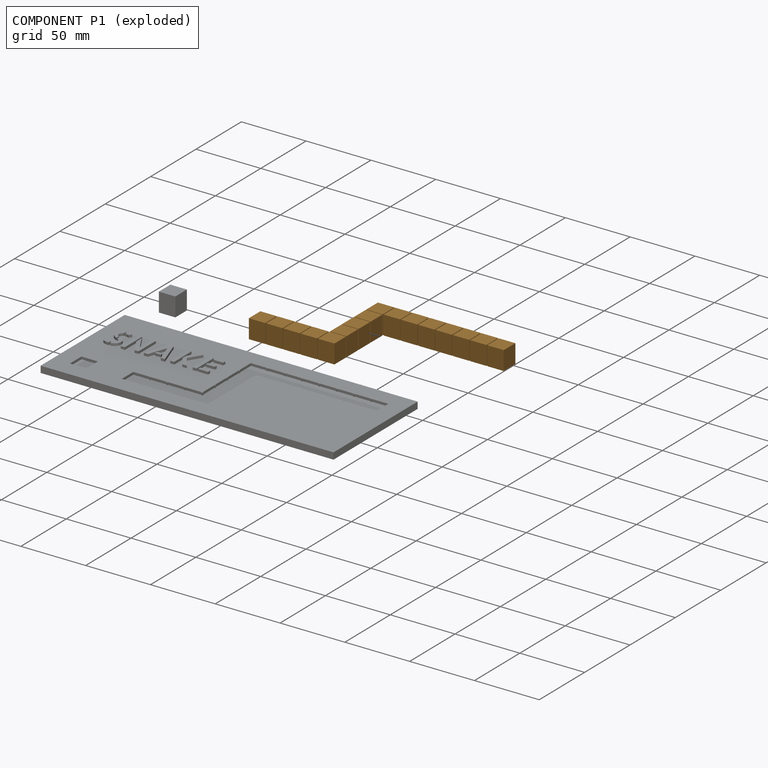
[diagram: component P1 — exploded]
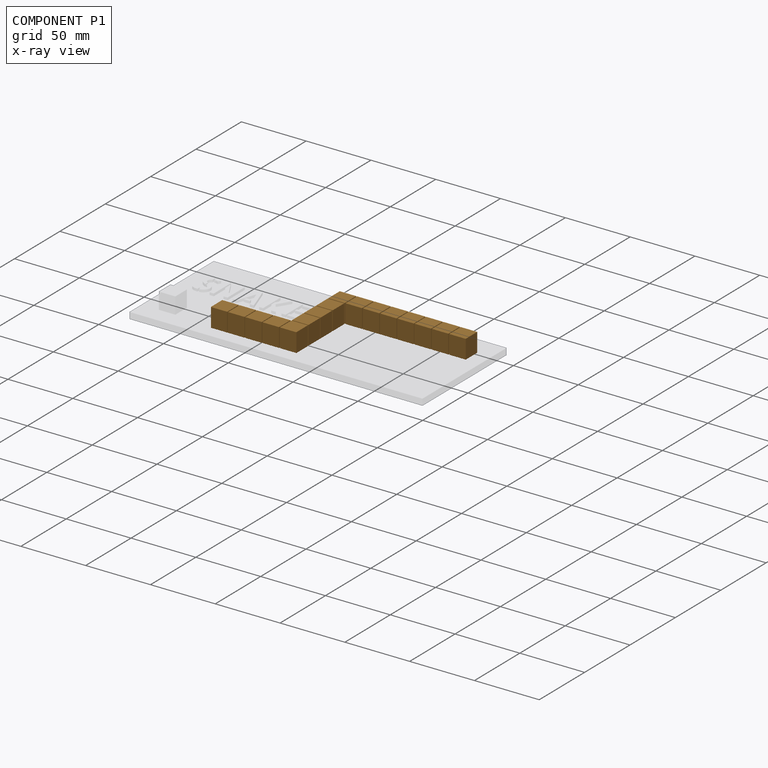
[diagram: component P1 — x-ray view]
COMPONENT P1 — geometry summary (no construction recipe available for this part):
  bounding box: 159.4 x 66.0 x 14.6 mm
  B-rep topology: 1 solid, 126 faces, 744 edges
  volume: 39211 mm^3 (26% of its bounding box)
  symmetry: mirror-symmetric across its z mid-plane
Held by: PLANAR mate "Planar 2" to P0; PLANAR mate "Planar 3" to P0; PLANAR mate "Planar 1" to P0.
PROVENANCE & LICENSES
Assembly (occurrences, transforms, mates, per-part STEP geometry): AutoMate dataset, Zenodo record 7776208, CC0.
Construction recipes: CADFS (HuggingFace VladPyatov/CADFS, CC-BY-4.0, layered over the ABC dataset), FeatureScript reconstruction programs keyed by ABC model id.
Join: ABC meta listings map ABC model id -> Onshape documentId; within a shared document, parts are matched by geometric signature (bounding-box dims + volume at 0.1% relative tolerance, exact B-rep face/solid counts).
Verification: 2 of this assembly's 3 components carry a recipe attachment, and every attachment is mesh-verified: the CADFS STEP and the AutoMate member STEP were compared as meshes in their shared local frame (symmetric sampled-point-to-mesh distance); worst across the 2 attachments: below the mesh-comparison resolution (tessellation chordal tolerance ~0.367 mm) on a 244 mm part.
Renders: orthographic iso camera (az 35 / el 25); the floor grid conveys scale (grid pitch printed in each image; no ruler). In the exploded view each component is displaced by its stored offset vector: the offsets alone carry the explosion direction (mate normal/axis signs are not orientation cues and do not encode it), and separation distances are assigned per mate-chain, not proportionally to assembly-order depth.
